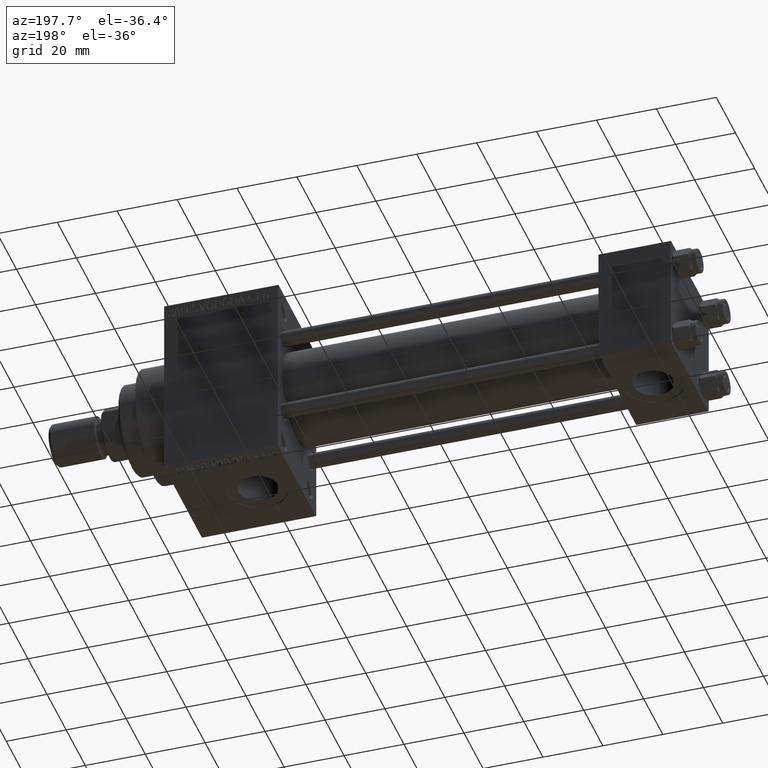
[diagram: clean part render]
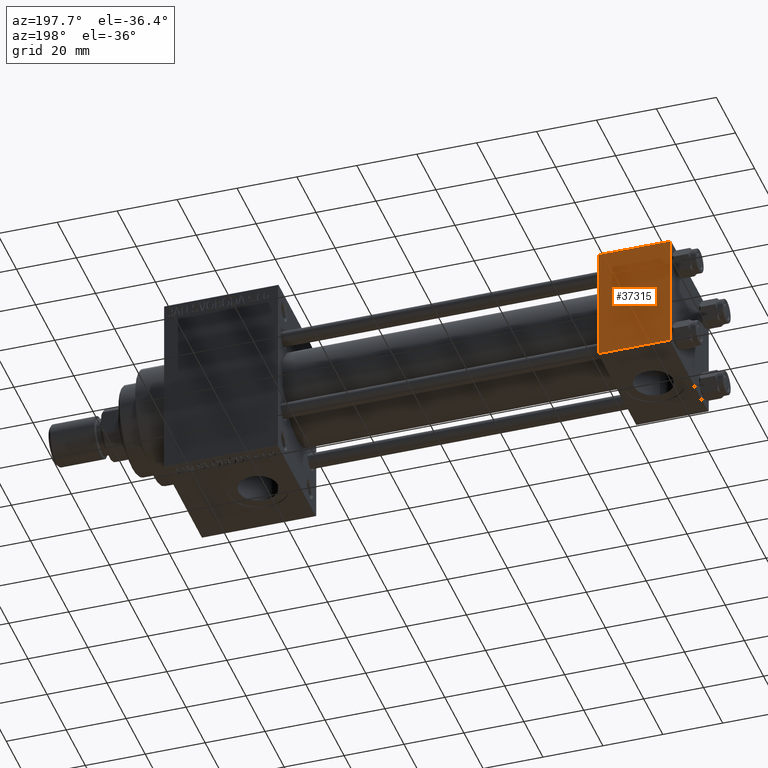
[diagram: same view with one face highlighted and labeled with its STEP entity id]
A machine part, auxiliary view. The second image highlights one B-rep face of the part: STEP entity #37315.
In plain terms, the highlighted planar face has unit normal (0, 1, 0).
Its self-contained STEP definition (entity closure, byte-faithful):
#443 = LINE ( 'NONE', #39896, #26001 ) ;
#661 = LINE ( 'NONE', #44674, #25504 ) ;
#1791 = PLANE ( 'NONE',  #18835 ) ;
#5824 = CARTESIAN_POINT ( 'NONE',  ( 24.00000000000000000, 20.00000000000000000, -19.50000000000002132 ) ) ;
#7761 = VECTOR ( 'NONE', #11123, 1000.000000000000000 ) ;
#10060 = CARTESIAN_POINT ( 'NONE',  ( 24.00000000000000000, 20.00000000000000000, 19.49999999999999289 ) ) ;
#11123 = DIRECTION ( 'NONE',  ( -1.000000000000000000, 0.000000000000000000, 0.000000000000000000 ) ) ;
#11492 = EDGE_LOOP ( 'NONE', ( #18675, #15305, #29244, #43687 ) ) ;
#12860 = DIRECTION ( 'NONE',  ( -0.000000000000000000, 1.000000000000000000, 0.000000000000000000 ) ) ;
#14986 = LINE ( 'NONE', #10060, #20850 ) ;
#15305 = ORIENTED_EDGE ( 'NONE', *, *, #24686, .T. ) ;
#16453 = CARTESIAN_POINT ( 'NONE',  ( 24.00000000000000000, 20.00000000000000000, 20.00000000000000000 ) ) ;
#18248 = EDGE_CURVE ( 'NONE', #35314, #22512, #443, .T. ) ;
#18675 = ORIENTED_EDGE ( 'NONE', *, *, #18248, .T. ) ;
#18835 = AXIS2_PLACEMENT_3D ( 'NONE', #16453, #12860, #21005 ) ;
#19563 = VERTEX_POINT ( 'NONE', #34522 ) ;
#20850 = VECTOR ( 'NONE', #35320, 1000.000000000000000 ) ;
#21005 = DIRECTION ( 'NONE',  ( 0.000000000000000000, -0.000000000000000000, 1.000000000000000000 ) ) ;
#22512 = VERTEX_POINT ( 'NONE', #5824 ) ;
#24686 = EDGE_CURVE ( 'NONE', #22512, #25958, #41185, .T. ) ;
#25504 = VECTOR ( 'NONE', #39236, 1000.000000000000000 ) ;
#25901 = EDGE_CURVE ( 'NONE', #19563, #35314, #14986, .T. ) ;
#25958 = VERTEX_POINT ( 'NONE', #47083 ) ;
#26001 = VECTOR ( 'NONE', #32910, 1000.000000000000000 ) ;
#29244 = ORIENTED_EDGE ( 'NONE', *, *, #29698, .F. ) ;
#29698 = EDGE_CURVE ( 'NONE', #19563, #25958, #661, .T. ) ;
#32910 = DIRECTION ( 'NONE',  ( 0.000000000000000000, 0.000000000000000000, -1.000000000000000000 ) ) ;
#33503 = CARTESIAN_POINT ( 'NONE',  ( 24.00000000000000000, 20.00000000000000000, -19.50000000000002132 ) ) ;
#34522 = CARTESIAN_POINT ( 'NONE',  ( 0.000000000000000000, 20.00000000000000000, 19.49999999999999289 ) ) ;
#34747 = FACE_OUTER_BOUND ( 'NONE', #11492, .T. ) ;
#35314 = VERTEX_POINT ( 'NONE', #42969 ) ;
#35320 = DIRECTION ( 'NONE',  ( 1.000000000000000000, 0.000000000000000000, 0.000000000000000000 ) ) ;
#37315 = ADVANCED_FACE ( 'NONE', ( #34747 ), #1791, .T. ) ;
#39236 = DIRECTION ( 'NONE',  ( 0.000000000000000000, 0.000000000000000000, -1.000000000000000000 ) ) ;
#39896 = CARTESIAN_POINT ( 'NONE',  ( 24.00000000000000000, 20.00000000000000000, 20.00000000000000000 ) ) ;
#41185 = LINE ( 'NONE', #33503, #7761 ) ;
#42969 = CARTESIAN_POINT ( 'NONE',  ( 24.00000000000000000, 20.00000000000000000, 19.49999999999999289 ) ) ;
#43687 = ORIENTED_EDGE ( 'NONE', *, *, #25901, .T. ) ;
#44674 = CARTESIAN_POINT ( 'NONE',  ( 0.000000000000000000, 20.00000000000000000, 20.00000000000000000 ) ) ;
#47083 = CARTESIAN_POINT ( 'NONE',  ( 0.000000000000000000, 20.00000000000000000, -19.50000000000002132 ) ) ;